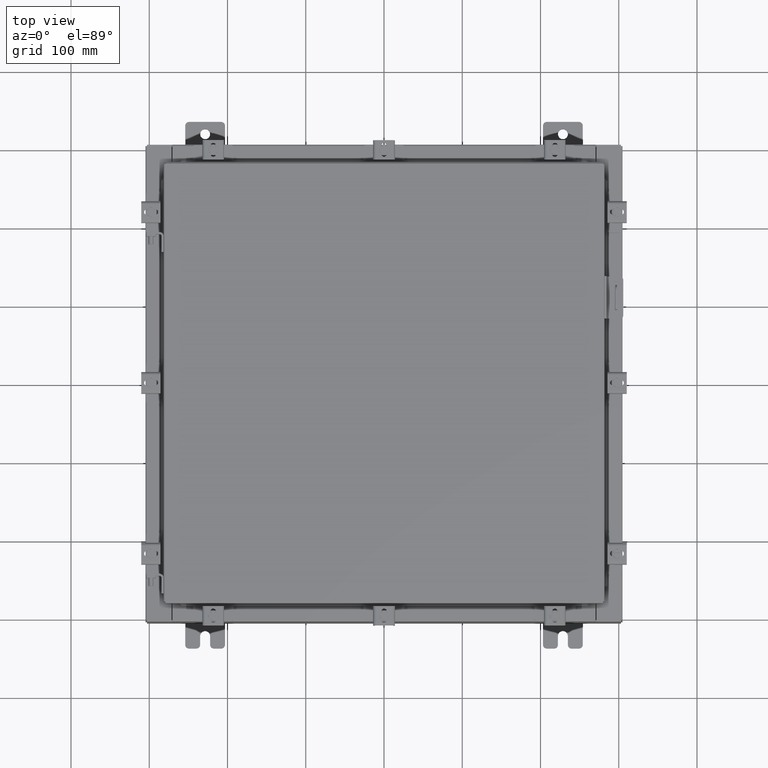
[diagram: clean part render]
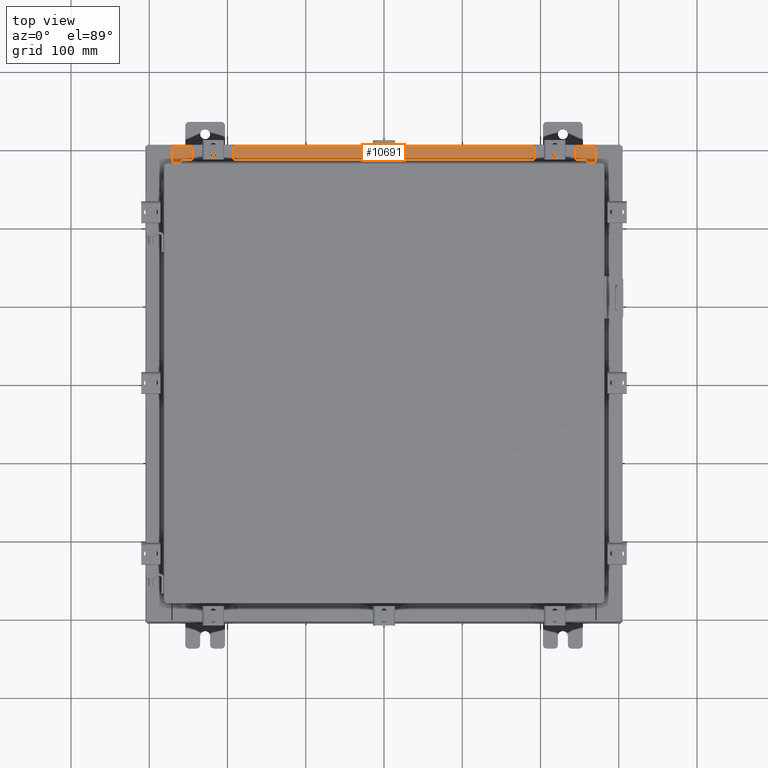
[diagram: same view with one face highlighted and labeled with its STEP entity id]
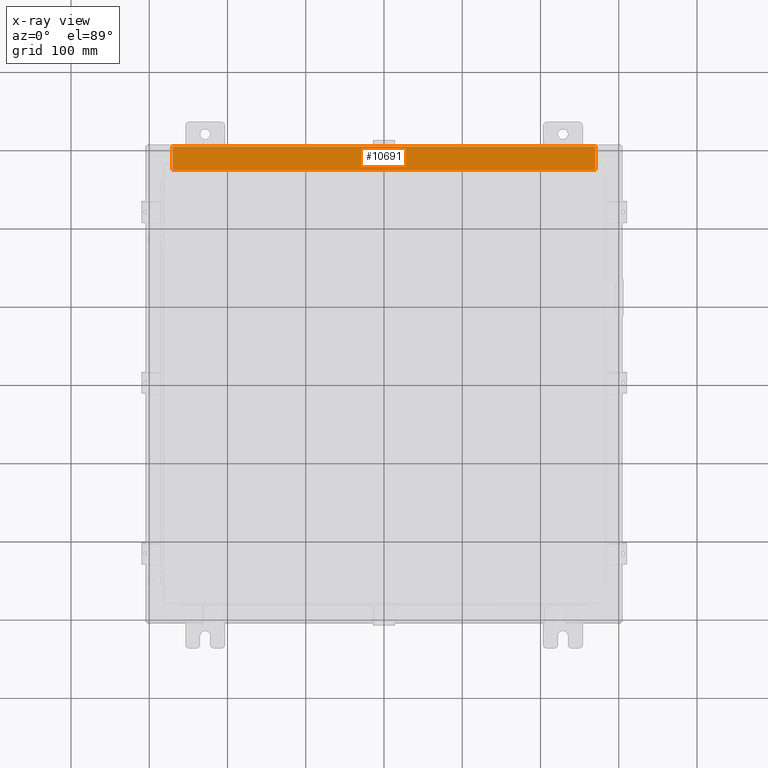
[diagram: x-ray of the same camera — body ghosted, the highlighted face saturated]
A machine part, top view. The second image highlights one B-rep face of the part: STEP entity #10691.
The next image is the same camera in x-ray: the body ghosted, the highlighted face saturated — about 0% of this face is hidden behind the body in this view.
In plain terms, the highlighted planar face has unit normal (0, 0, 1).
Its self-contained STEP definition (entity closure, byte-faithful):
#1076 = AXIS2_PLACEMENT_3D ( 'NONE', #13938, #3467, #15662 ) ;
#1404 = EDGE_CURVE ( 'NONE', #7082, #22004, #18940, .T. ) ;
#1565 = DIRECTION ( 'NONE',  ( -1.000000000000000000, 0.0000000000000000000, 0.0000000000000000000 ) ) ;
#1736 = VECTOR ( 'NONE', #10674, 39.37007874015748100 ) ;
#2162 = EDGE_CURVE ( 'NONE', #10575, #3741, #15644, .T. ) ;
#2514 = ORIENTED_EDGE ( 'NONE', *, *, #16985, .T. ) ;
#3467 = DIRECTION ( 'NONE',  ( 0.0000000000000000000, 3.566381192773190000E-015, 1.000000000000000000 ) ) ;
#3741 = VERTEX_POINT ( 'NONE', #20397 ) ;
#4270 = ORIENTED_EDGE ( 'NONE', *, *, #2162, .F. ) ;
#4954 = CARTESIAN_POINT ( 'NONE',  ( -10.63720000000000200, -1.287299999999999200, 3.000000000000005300 ) ) ;
#5269 = DIRECTION ( 'NONE',  ( -1.000000000000000000, 2.568202152506545800E-017, -9.159187855938968600E-032 ) ) ;
#6535 = CARTESIAN_POINT ( 'NONE',  ( 10.63720000000000400, -0.08769999999999965300, 3.000000000000000900 ) ) ;
#6674 = FACE_OUTER_BOUND ( 'NONE', #16279, .T. ) ;
#7082 = VERTEX_POINT ( 'NONE', #4954 ) ;
#7604 = ORIENTED_EDGE ( 'NONE', *, *, #21761, .F. ) ;
#8548 = DIRECTION ( 'NONE',  ( -0.0000000000000000000, 1.000000000000000000, -3.566381192773190000E-015 ) ) ;
#8875 = ORIENTED_EDGE ( 'NONE', *, *, #1404, .F. ) ;
#8937 = CARTESIAN_POINT ( 'NONE',  ( 10.63720000000000200, -1.300299999999999800, 3.000000000000005300 ) ) ;
#10368 = CARTESIAN_POINT ( 'NONE',  ( -10.63720000000000200, -0.07469999999999973900, 3.000000000000000900 ) ) ;
#10447 = CARTESIAN_POINT ( 'NONE',  ( -2.252313287748515100E-018, -0.08770000000000000000, 3.000000000000001300 ) ) ;
#10575 = VERTEX_POINT ( 'NONE', #6535 ) ;
#10674 = DIRECTION ( 'NONE',  ( -0.0000000000000000000, -1.000000000000000000, 3.566381192773190000E-015 ) ) ;
#10691 = ADVANCED_FACE ( 'NONE', ( #6674 ), #12154, .T. ) ;
#12154 = PLANE ( 'NONE',  #1076 ) ;
#12514 = LINE ( 'NONE', #10447, #21788 ) ;
#13938 = CARTESIAN_POINT ( 'NONE',  ( 0.0000000000000000000, 1.069354855923099900E-014, 3.000000000000000900 ) ) ;
#14459 = CARTESIAN_POINT ( 'NONE',  ( -10.63720000000000200, -0.08770000000000000000, 3.000000000000000900 ) ) ;
#15644 = LINE ( 'NONE', #8937, #1736 ) ;
#15662 = DIRECTION ( 'NONE',  ( 0.0000000000000000000, -1.000000000000000000, 3.566381192773190000E-015 ) ) ;
#16244 = VECTOR ( 'NONE', #1565, 39.37007874015748100 ) ;
#16279 = EDGE_LOOP ( 'NONE', ( #8875, #7604, #4270, #2514 ) ) ;
#16792 = LINE ( 'NONE', #20404, #16244 ) ;
#16985 = EDGE_CURVE ( 'NONE', #10575, #22004, #12514, .T. ) ;
#18940 = LINE ( 'NONE', #10368, #19501 ) ;
#19501 = VECTOR ( 'NONE', #8548, 39.37007874015748100 ) ;
#20397 = CARTESIAN_POINT ( 'NONE',  ( 10.63720000000000200, -1.287299999999999900, 3.000000000000005300 ) ) ;
#20404 = CARTESIAN_POINT ( 'NONE',  ( 10.63720000000000400, -1.287299999999999900, 3.000000000000005300 ) ) ;
#21761 = EDGE_CURVE ( 'NONE', #3741, #7082, #16792, .T. ) ;
#21788 = VECTOR ( 'NONE', #5269, 39.37007874015748100 ) ;
#22004 = VERTEX_POINT ( 'NONE', #14459 ) ;